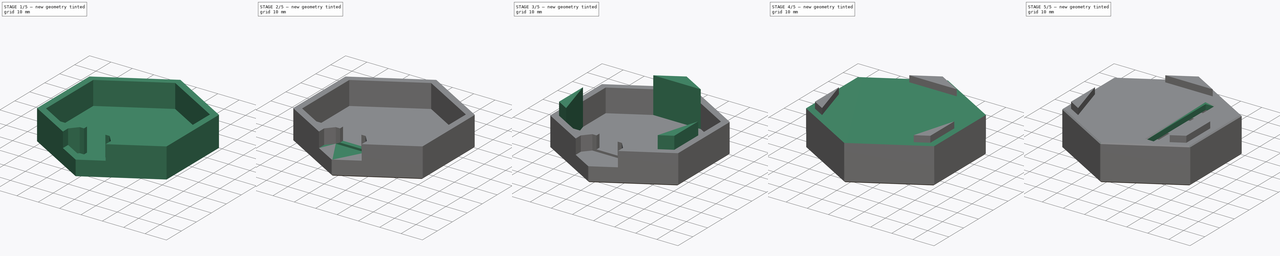
[diagram: build sequence overview — one tinted view per stage of 5, left to right]
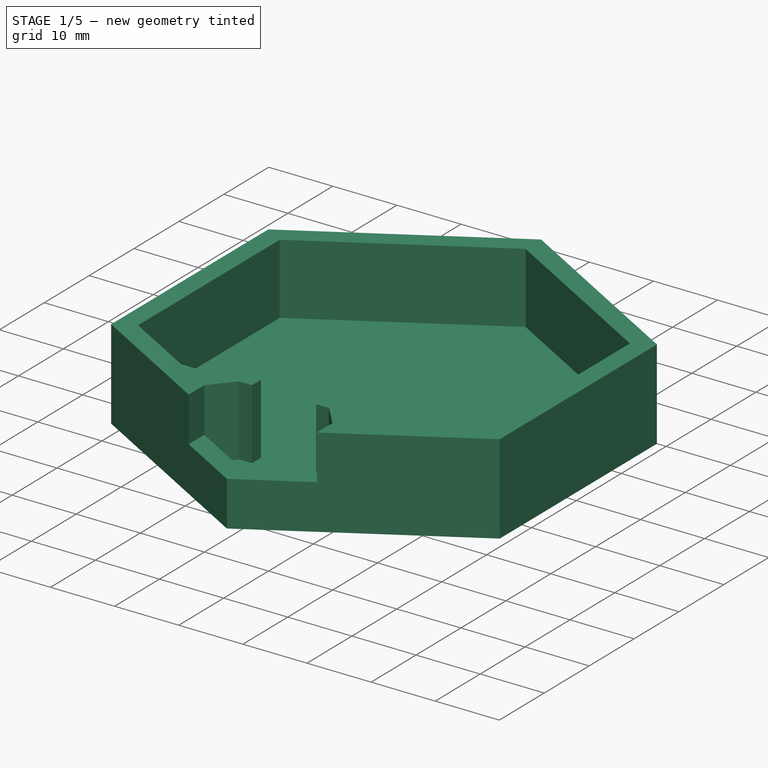
[diagram: stage 1 of 5 — iso view after this stage's code; geometry added in this stage tinted green]
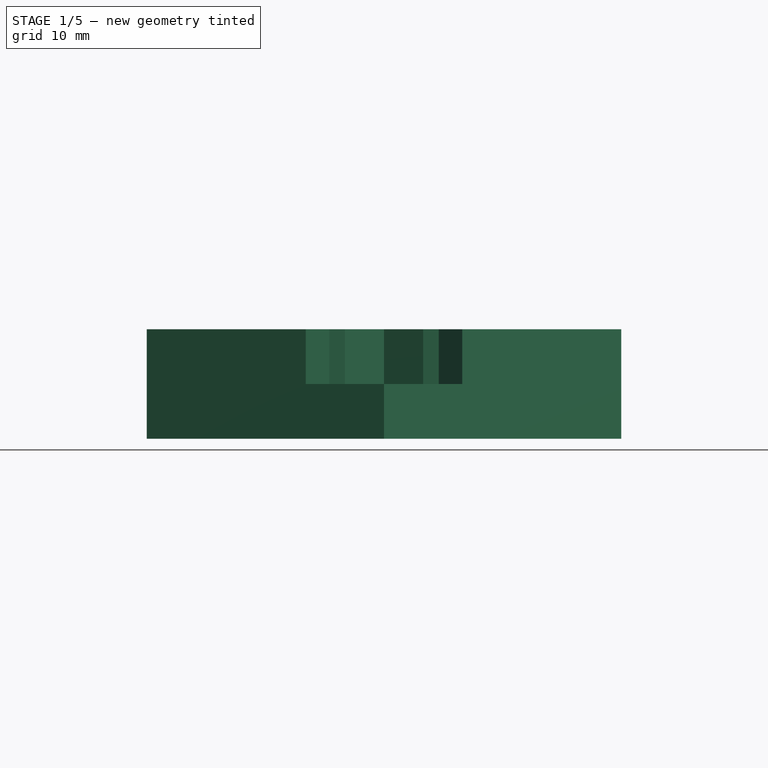
[diagram: stage 1 of 5 — front view after this stage's code; geometry added in this stage tinted green]
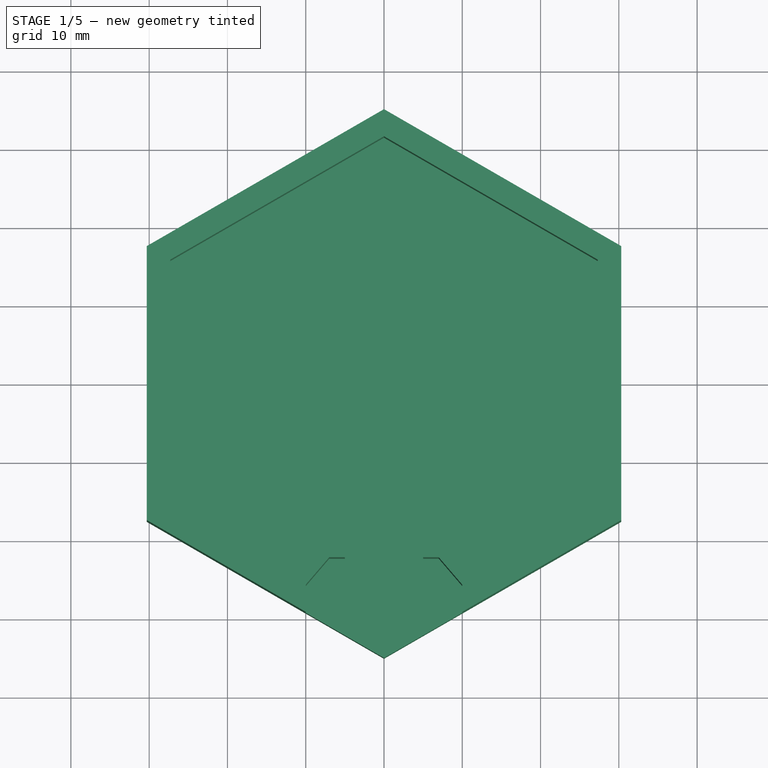
[diagram: stage 1 of 5 — top view after this stage's code; geometry added in this stage tinted green]
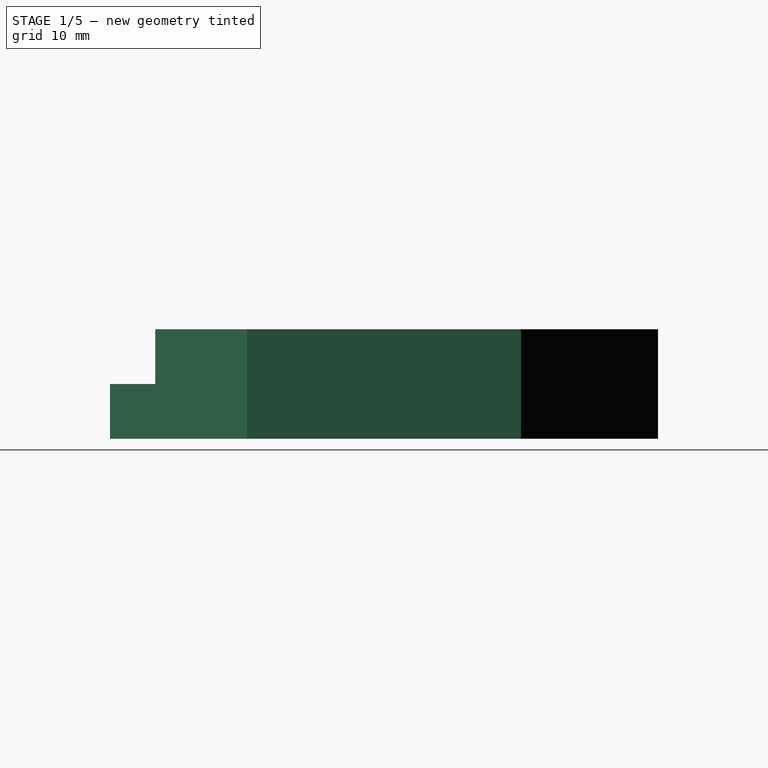
[diagram: stage 1 of 5 — right view after this stage's code; geometry added in this stage tinted green]
FCSTD DOCUMENT  (FreeCAD 1.0R39109 (Git))
Label: ILCbox
License: All rights reserved
objects: Part::Feature×24, App::Part×24, Sketcher::SketchObject×13, PartDesign::Pad×13, PartDesign::Fillet×3, PartDesign::Thickness×2, PartDesign::Pocket×2, PartDesign::Chamfer×2, PartDesign::Body×2, Spreadsheet::Sheet×1
note: 118 computed .brp shape members not serialized (recipe doc carries the construction recipe); baked Part::Feature solids carry a one-line shape summary decoded from their .brp

FEATURE [Sketcher::SketchObject] Sketch
  ArcFitTolerance = 1e-06
  AttachmentSupport = -> [XY_Plane024]
  FullyConstrained = true
  MakeInternals = false
  MapMode = 5
  sketch-geometry (7):
    g0: LineSegment StartX=0 StartY=-35 StartZ=0 EndX=30.3109 EndY=-17.5 EndZ=0
    g1: LineSegment StartX=30.3109 StartY=-17.5 StartZ=0 EndX=30.3109 EndY=17.5 EndZ=0
    g2: LineSegment StartX=30.3109 StartY=17.5 StartZ=0 EndX=3.6e-15 EndY=35 EndZ=0
    g3: LineSegment StartX=3.6e-15 StartY=35 StartZ=0 EndX=-30.3109 EndY=17.5 EndZ=0
    g4: LineSegment StartX=-30.3109 StartY=17.5 StartZ=0 EndX=-30.3109 EndY=-17.5 EndZ=0
    g5: LineSegment StartX=-30.3109 StartY=-17.5 StartZ=0 EndX=0 EndY=-35 EndZ=0
    g6: Circle [constr] CenterX=0 CenterY=0 CenterZ=0 NormalX=0 NormalY=0 NormalZ=1 AngleXU=0 Radius=35
  constraints (16):
    c: Coincident(g0,g1)
    c: Coincident(g1,g2)
    c: Coincident(g2,g3)
    c: Coincident(g3,g4)
    c: Coincident(g4,g5)
    c: Coincident(g5,g0)
    c: Equal(g0, g1-g5) x5
    c: PointOnObject(g0,g6)
    c: PointOnObject(g1,g6)
    c: PointOnObject(g2,g6)
    c: PointOnObject(g3,g6)
    c: PointOnObject(g4,g6)
    c: PointOnObject(g5,g6)
    c: Coincident(g6,g-1)
    c: PointOnObject(g5,g-2)
    c: Distance(g5,g5) = 35
FEATURE [PartDesign::Pad] Pad
  Direction = (0,0,1)
  Length = 14
  Length2 = 10
  Midplane = true
  Profile = -> Sketch
  ReferenceAxis = -> Sketch [N_Axis]
  Refine = true
  Suppressed = false
  Type = 0
FEATURE [PartDesign::Thickness] Thickness
  Base = -> Pad [Face8]
  BaseFeature = -> Pad
  Intersection = false
  Join = 0
  Mode = 0
  Refine = true
  Reversed = true
  SupportTransform = false
  Suppressed = false
  Value = 3
FEATURE [Sketcher::SketchObject] Sketch001
  ArcFitTolerance = 1e-06
  AttachmentSupport = -> [XZ_Plane024]
  FullyConstrained = true
  MakeInternals = false
  MapMode = 5
  Placement = pos=(0,0,0) rot=(1,0,0;1.5708rad)
  expr: Constraints[10] = <<variablestable>>.y_usb
  sketch-geometry (5):
    g0: LineSegment StartX=-10 StartY=7 StartZ=0 EndX=-10 EndY=0 EndZ=0
    g1: LineSegment StartX=-10 StartY=0 StartZ=0 EndX=10 EndY=0 EndZ=0
    g2: LineSegment StartX=10 StartY=0 StartZ=0 EndX=10 EndY=7 EndZ=0
    g3: LineSegment StartX=10 StartY=7 StartZ=0 EndX=-10 EndY=7 EndZ=0
    g4: GeomPoint X=0 Y=7 Z=0
  constraints (13):
    c: Coincident(g0,g1)
    c: Coincident(g1,g2)
    c: Coincident(g2,g3)
    c: Coincident(g3,g0)
    c: Vertical(g0)
    c: Vertical(g2)
    c: Horizontal(g1)
    c: Horizontal(g3)
    c: DistanceX(g3,g3) = 20
    c: Distance(g1,g3) = 7
    c: Distance(g-1,g1) = 0
    c: Symmetric(g3,g3,g4)
    c: PointOnObject(g4,g-2)
FEATURE [PartDesign::Pocket] Pocket
  BaseFeature = -> Thickness
  Direction = (0,1,-2e-16)
  Length = 7
  Length2 = 5
  Profile = -> Sketch001
  ReferenceAxis = -> Sketch001 [N_Axis]
  Refine = true
  Reversed = true
  Suppressed = false
  Type = 1
FEATURE [Sketcher::SketchObject] Sketch002
  ArcFitTolerance = 1e-06
  AttachmentSupport = -> [Pocket]
  ExternalGeometry = -> [Pocket]
  FullyConstrained = true
  MakeInternals = false
  MapMode = 5
  Placement = pos=(0,0,-4) rot=(0,0,1;0rad)
  sketch-geometry (14):
    g0: LineSegment StartX=-12.5 StartY=-22.2624 StartZ=0 EndX=-7 EndY=-20.2624 EndZ=0
    g1: LineSegment StartX=-7 StartY=-20.2624 StartZ=0 EndX=-5 EndY=-20.2624 EndZ=0
    g2: LineSegment StartX=-5 StartY=-20.2624 StartZ=0 EndX=-5 EndY=-22.2624 EndZ=0
    g3: LineSegment StartX=-5 StartY=-22.2624 StartZ=0 EndX=-7 EndY=-22.2624 EndZ=0
    g4: LineSegment StartX=-16.0622 StartY=-22.2624 StartZ=0 EndX=-12.5 EndY=-22.2624 EndZ=0
    g5: LineSegment StartX=-7 StartY=-22.2624 StartZ=0 EndX=-10 EndY=-25.7624 EndZ=0
    g6: LineSegment StartX=-10 StartY=-25.7624 StartZ=0 EndX=-16.0622 EndY=-22.2624 EndZ=0
    g7: LineSegment StartX=12.5 StartY=-22.2624 StartZ=0 EndX=7 EndY=-20.2624 EndZ=0
    g8: LineSegment StartX=7 StartY=-20.2624 StartZ=0 EndX=5 EndY=-20.2624 EndZ=0
    g9: LineSegment StartX=5 StartY=-20.2624 StartZ=0 EndX=5 EndY=-22.2624 EndZ=0
    g10: LineSegment StartX=5 StartY=-22.2624 StartZ=0 EndX=7 EndY=-22.2624 EndZ=0
    g11: LineSegment StartX=16.0622 StartY=-22.2624 StartZ=0 EndX=12.5 EndY=-22.2624 EndZ=0
    g12: LineSegment StartX=7 StartY=-22.2624 StartZ=0 EndX=10 EndY=-25.7624 EndZ=0
    g13: LineSegment StartX=10 StartY=-25.7624 StartZ=0 EndX=16.0622 EndY=-22.2624 EndZ=0
  constraints (39):
    c: PointOnObject(g4,g-4)
    c: Coincident(g0,g1)
    c: Horizontal(g1)
    c: Coincident(g1,g2)
    c: Vertical(g2)
    c: Coincident(g2,g3)
    c: Horizontal(g3)
    c: Coincident(g4,g0)
    c: Horizontal(g4)
    c: DistanceX(g0,g-4) = 2.5
    c: DistanceX(g0,g0) = 5.5
    c: Vertical(g3,g0)
    c: Coincident(g3,g5)
    c: Coincident(g5,g-4)
    c: Coincident(g5,g6)
    c: Coincident(g6,g4)
    c: Distance(g2,g2) = 2
    c: Distance(g5,g3) = 3.5
    c: Horizontal(g0,g3)
    c: DistanceX(g1,g1) = 2
    c: Coincident(g7,g8)
    c: Horizontal(g8)
    c: Coincident(g8,g9)
    c: Vertical(g9)
    c: Coincident(g9,g10)
    c: Horizontal(g10)
    c: Coincident(g11,g7)
    c: Horizontal(g11)
    c: Coincident(g10,g12)
    c: Coincident(g12,g13)
    c: Coincident(g13,g11)
    c: Distance(g9,g9) = 2
    c: Distance(g12,g10) = 3.5
    c: DistanceX(g3,g10) = 14
    c: DistanceX(g12,g7) = 2.5
    c: DistanceX(g8,g8) = 2
    c: DistanceX(g7,g7) = 5.5
    c: Symmetric(g4,g11,g-2)
    c: Symmetric(g12,g5,g-2)
FEATURE [PartDesign::Pad] Pad001
  BaseFeature = -> Pocket
  Direction = (0,0,1)
  Length = 18
  Length2 = 21
  Profile = -> Sketch002
  ReferenceAxis = -> Sketch002 [N_Axis]
  Refine = true
  Suppressed = false
  Type = 3
  UpToFace = -> Pocket [Face4]
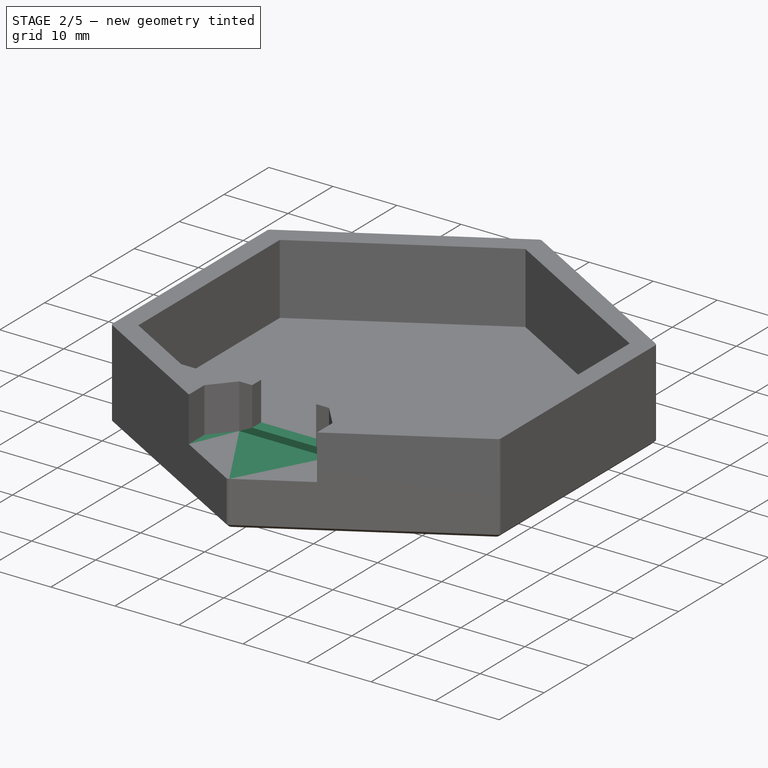
[diagram: stage 2 of 5 — iso view after this stage's code; geometry added in this stage tinted green]
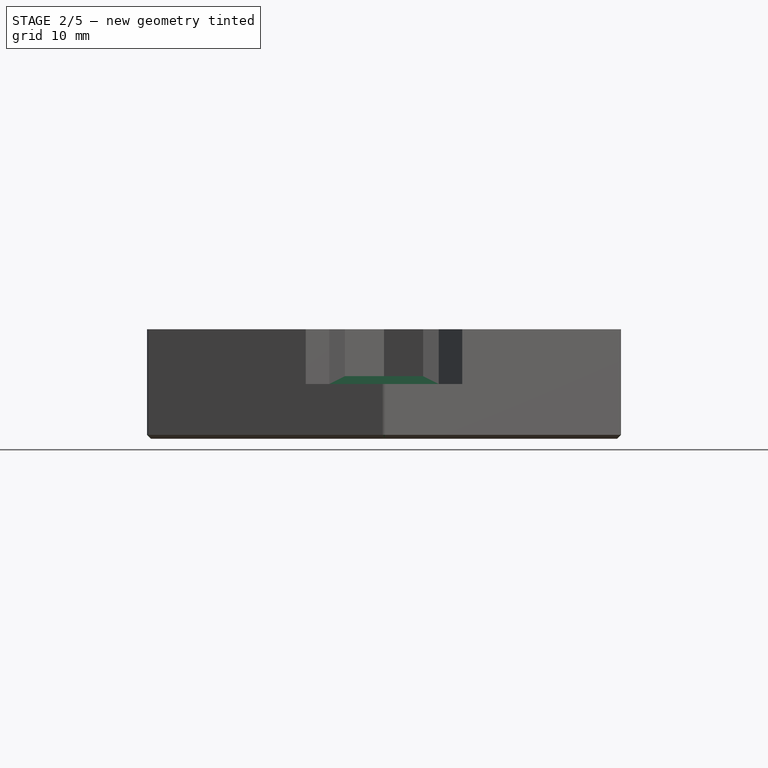
[diagram: stage 2 of 5 — front view after this stage's code; geometry added in this stage tinted green]
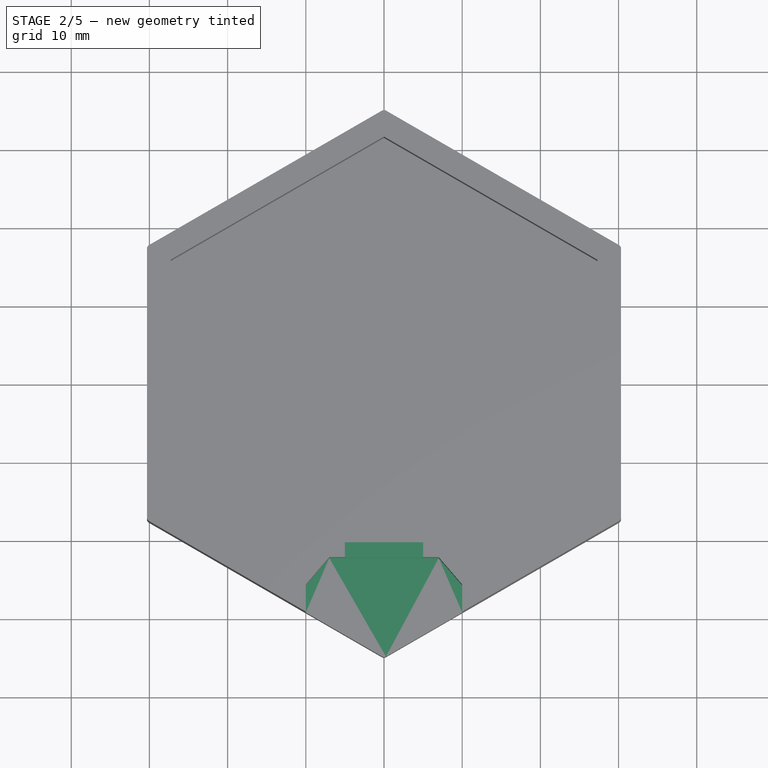
[diagram: stage 2 of 5 — top view after this stage's code; geometry added in this stage tinted green]
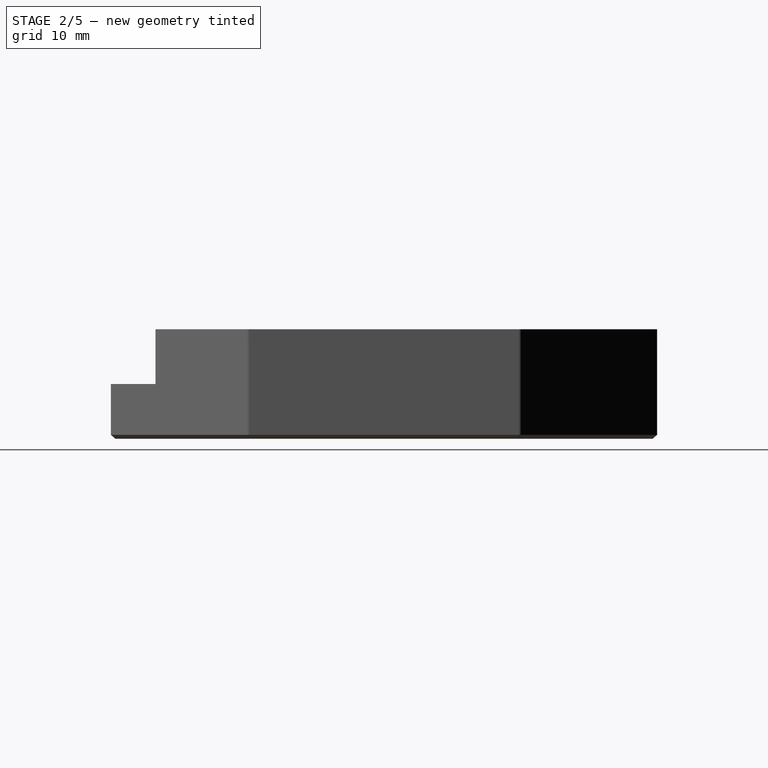
[diagram: stage 2 of 5 — right view after this stage's code; geometry added in this stage tinted green]
FEATURE [Sketcher::SketchObject] Sketch003
  ArcFitTolerance = 1e-06
  AttachmentSupport = -> [Pad001]
  ExternalGeometry = -> [Pad001]
  FullyConstrained = true
  MakeInternals = false
  MapMode = 5
  Placement = pos=(0,0,-4) rot=(0,0,1;0rad)
  sketch-geometry (5):
    g0: LineSegment StartX=-10 StartY=-25.7624 StartZ=0 EndX=-7 EndY=-22.2624 EndZ=0
    g1: LineSegment StartX=-7 StartY=-22.2624 StartZ=0 EndX=7 EndY=-22.2624 EndZ=0
    g2: LineSegment StartX=7 StartY=-22.2624 StartZ=0 EndX=10 EndY=-25.7624 EndZ=0
    g3: LineSegment StartX=10 StartY=-25.7624 StartZ=0 EndX=0 EndY=-31.5359 EndZ=0
    g4: LineSegment StartX=0 StartY=-31.5359 StartZ=0 EndX=-10 EndY=-25.7624 EndZ=0
  constraints (10):
    c: Coincident(g-5,g0)
    c: Coincident(g0,g-4)
    c: Coincident(g0,g1)
    c: Coincident(g1,g-8)
    c: Coincident(g1,g2)
    c: Coincident(g2,g-7)
    c: Coincident(g2,g3)
    c: Coincident(g3,g-6)
    c: Coincident(g3,g4)
    c: Coincident(g4,g0)
FEATURE [PartDesign::Pad] Pad002
  BaseFeature = -> Pad001
  Direction = (0,0,1)
  Length = 10
  Length2 = 10
  Profile = -> Sketch003
  ReferenceAxis = -> Sketch003 [N_Axis]
  Refine = true
  Suppressed = false
  Type = 3
  UpToFace = -> Pad001 [Face5]
FEATURE [Spreadsheet::Sheet] Spreadsheet  label="variablestable"
  cells = A2='X usb; B2(usb_port_x)=15; A3='Hauteur y usb; B3(y_usb)=0
FEATURE [Sketcher::SketchObject] Sketch007
  ArcFitTolerance = 1e-06
  AttachmentSupport = -> [Pad001]
  ExternalGeometry = -> [Pad001]
  FullyConstrained = true
  MakeInternals = false
  MapMode = 5
  Placement = pos=(0,0,-4) rot=(0,0,1;0rad)
  sketch-geometry (4):
    g0: LineSegment StartX=-5 StartY=-20.2624 StartZ=0 EndX=-5 EndY=-22.2624 EndZ=0
    g1: LineSegment StartX=-5 StartY=-22.2624 StartZ=0 EndX=5 EndY=-22.2624 EndZ=0
    g2: LineSegment StartX=5 StartY=-22.2624 StartZ=0 EndX=5 EndY=-20.2624 EndZ=0
    g3: LineSegment StartX=5 StartY=-20.2624 StartZ=0 EndX=-5 EndY=-20.2624 EndZ=0
  constraints (10):
    c: Coincident(g0,g1)
    c: Coincident(g1,g2)
    c: Coincident(g2,g3)
    c: Coincident(g3,g0)
    c: Vertical(g0)
    c: Vertical(g2)
    c: Horizontal(g1)
    c: Horizontal(g3)
    c: Coincident(g0,g-3)
    c: Coincident(g1,g-4)
FEATURE [PartDesign::Pad] Pad005
  BaseFeature = -> Pad002
  Direction = (0,0,1)
  Length = 5
  Length2 = 10
  Profile = -> Sketch007
  ReferenceAxis = -> Sketch007 [N_Axis]
  Refine = true
  Suppressed = false
  Type = 0
FEATURE [PartDesign::Chamfer] Chamfer001
  Angle = 45
  Base = -> Pad005 [Face2]
  BaseFeature = -> Pad005
  ChamferType = 0
  FlipDirection = false
  Refine = true
  Size = 0.5
  Size2 = 1
  SupportTransform = false
  Suppressed = false
  UseAllEdges = false
FEATURE [PartDesign::Fillet] Fillet001
  Base = -> Chamfer001 [Edge9,Edge50,Edge1,Edge4,Edge39,Edge57]
  BaseFeature = -> Chamfer001
  Radius = 0.5
  Refine = true
  SupportTransform = false
  Suppressed = false
  UseAllEdges = false
FEATURE [PartDesign::Fillet] Fillet002
  Base = -> Fillet001 [Edge116,Edge54,Edge117,Edge63,Edge7,Edge10]
  BaseFeature = -> Fillet001
  Radius = 0.707111
  Refine = true
  SupportTransform = false
  Suppressed = false
  UseAllEdges = false
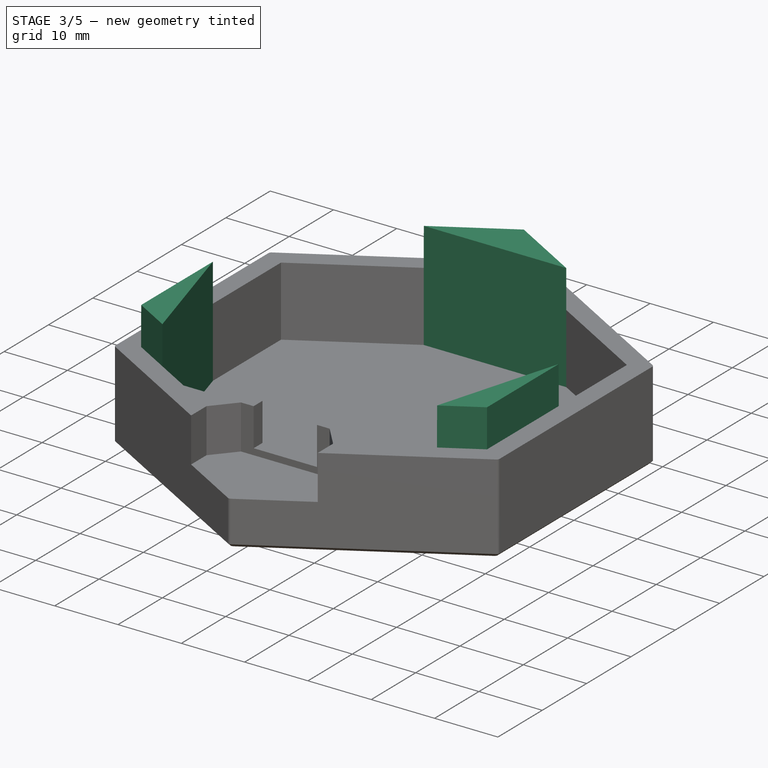
[diagram: stage 3 of 5 — iso view after this stage's code; geometry added in this stage tinted green]
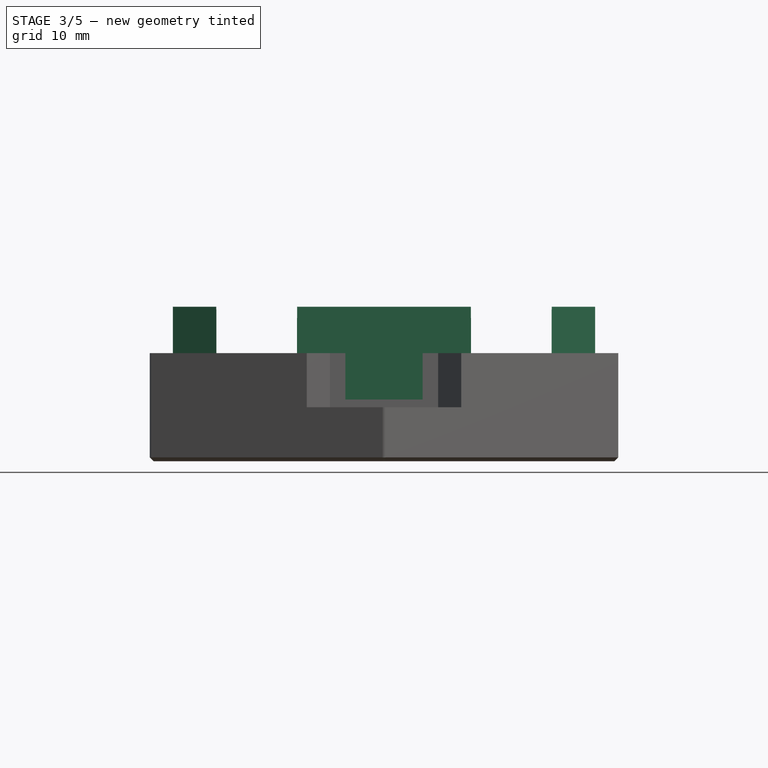
[diagram: stage 3 of 5 — front view after this stage's code; geometry added in this stage tinted green]
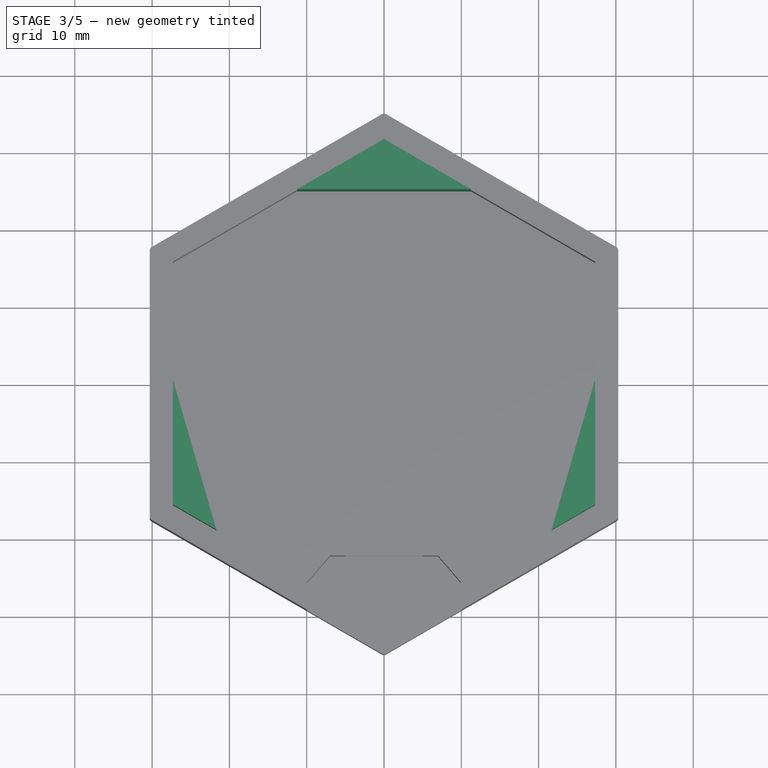
[diagram: stage 3 of 5 — top view after this stage's code; geometry added in this stage tinted green]
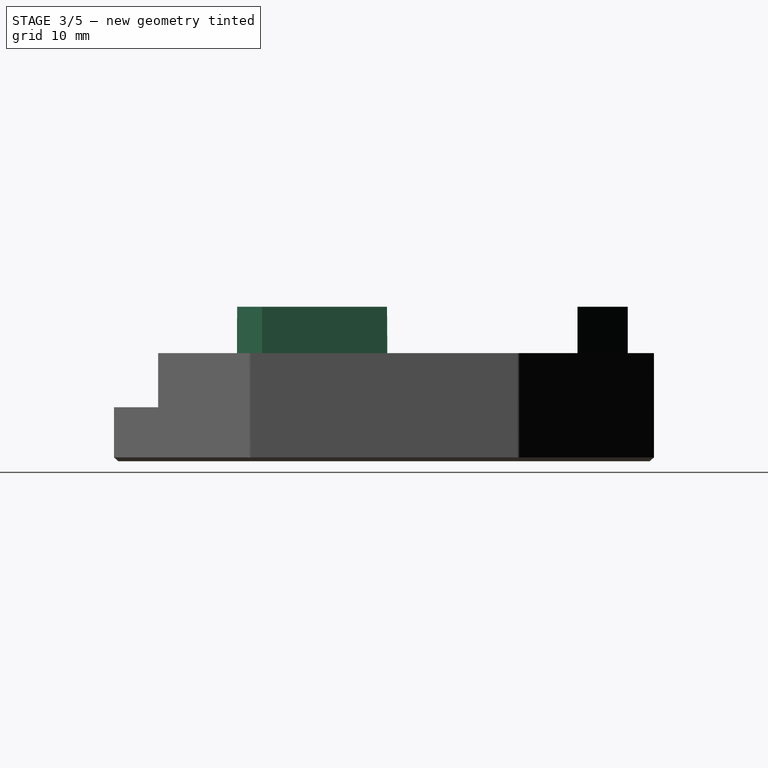
[diagram: stage 3 of 5 — right view after this stage's code; geometry added in this stage tinted green]
FEATURE [PartDesign::Body] Body001  label="Corps"
  AllowCompound = false
  Group = -> [Sketch004,Pad003,Thickness001,Sketch005,Pad004,Sketch008,Pocket001,Chamfer,Fillet,Sketch009,Pad006]
  Origin = -> Origin025
  Placement = pos=(0,1.5,7) rot=(0,0,1;0rad)
  Tip = -> Pad006
FEATURE [Sketcher::SketchObject] Sketch011
  ArcFitTolerance = 1e-06
  AttachmentSupport = -> [Fillet002]
  ExternalGeometry = -> [Fillet002]
  FullyConstrained = true
  MakeInternals = false
  MapMode = 5
  Placement = pos=(0,0,-4) rot=(0,0,1;0rad)
  sketch-geometry (3):
    g0: LineSegment StartX=-7.1e-15 StartY=31.5359 StartZ=0 EndX=-11.2583 EndY=25.0359 EndZ=0
    g1: LineSegment StartX=-11.2583 StartY=25.0359 StartZ=0 EndX=11.2583 EndY=25.0359 EndZ=0
    g2: LineSegment StartX=11.2583 StartY=25.0359 StartZ=0 EndX=-7.1e-15 EndY=31.5359 EndZ=0
  constraints (8):
    c: Coincident(g-4,g0)
    c: PointOnObject(g0,g-3)
    c: Coincident(g0,g1)
    c: PointOnObject(g1,g-4)
    c: Horizontal(g1)
    c: Coincident(g1,g2)
    c: Coincident(g2,g0)
    c: Distance(g0,g1) = 6.5
FEATURE [PartDesign::Pad] Pad007
  BaseFeature = -> Fillet002
  Direction = (0,0,1)
  Length = 11
  Length2 = 10
  Offset = -1
  Profile = -> Sketch011
  ReferenceAxis = -> Sketch011 [N_Axis]
  Refine = true
  Suppressed = false
  Type = 3
  UpToFace = -> Fillet002 [Face8]
FEATURE [PartDesign::Pad] Pad008
  BaseFeature = -> Pad007
  Direction = (0,0,1)
  Length = 5
  Length2 = 10
  Profile = -> Pad007 [Face51]
  Refine = true
  Suppressed = false
  TaperAngle = -0.05
  Type = 0
FEATURE [Sketcher::SketchObject] Sketch012
  ArcFitTolerance = 1e-06
  AttachmentSupport = -> [Pad008]
  ExternalGeometry = -> [Pad008]
  FullyConstrained = true
  MakeInternals = false
  MapMode = 5
  Placement = pos=(0,0,-4) rot=(0,0,1;0rad)
  sketch-geometry (6):
    g0: LineSegment StartX=27.3109 StartY=-15.7679 StartZ=0 EndX=27.3109 EndY=0.420038 EndZ=0
    g1: LineSegment StartX=27.3109 StartY=0.420038 StartZ=0 EndX=21.6865 EndY=-19.0152 EndZ=0
    g2: LineSegment StartX=21.6865 StartY=-19.0152 StartZ=0 EndX=27.3109 EndY=-15.7679 EndZ=0
    g3: LineSegment StartX=-27.3109 StartY=-15.7679 StartZ=0 EndX=-27.3109 EndY=0.420038 EndZ=0
    g4: LineSegment StartX=-27.3109 StartY=0.420038 StartZ=0 EndX=-21.6865 EndY=-19.0152 EndZ=0
    g5: LineSegment StartX=-21.6865 StartY=-19.0152 StartZ=0 EndX=-27.3109 EndY=-15.7679 EndZ=0
  constraints (13):
    c: Coincident(g-4,g0)
    c: PointOnObject(g0,g-4)
    c: Coincident(g0,g1)
    c: Symmetric(g-3,g-3,g1)
    c: Coincident(g1,g2)
    c: Coincident(g2,g0)
    c: Distance(g0,g1) = 4.5
    c: Symmetric(g0,g3,g-2)
    c: Symmetric(g0,g3,g-2)
    c: Symmetric(g1,g4,g-2)
    c: Symmetric(g1,g4,g-2)
    c: Symmetric(g2,g5,g-2)
    c: Symmetric(g2,g5,g-2)
FEATURE [PartDesign::Pad] Pad009
  BaseFeature = -> Pad008
  Direction = (0,0,1)
  Length = 10
  Length2 = 10
  Offset = -1
  Profile = -> Sketch012
  ReferenceAxis = -> Sketch012 [N_Axis]
  Refine = true
  Suppressed = false
  Type = 3
  UpToFace = -> Pad008 [Face8]
FEATURE [PartDesign::Pad] Pad010
  BaseFeature = -> Pad009
  Direction = (0,0,1)
  Length = 5
  Length2 = 10
  Profile = -> Pad009 [Face60,Face55]
  Refine = true
  Suppressed = false
  TaperAngle = -0.05
  Type = 0
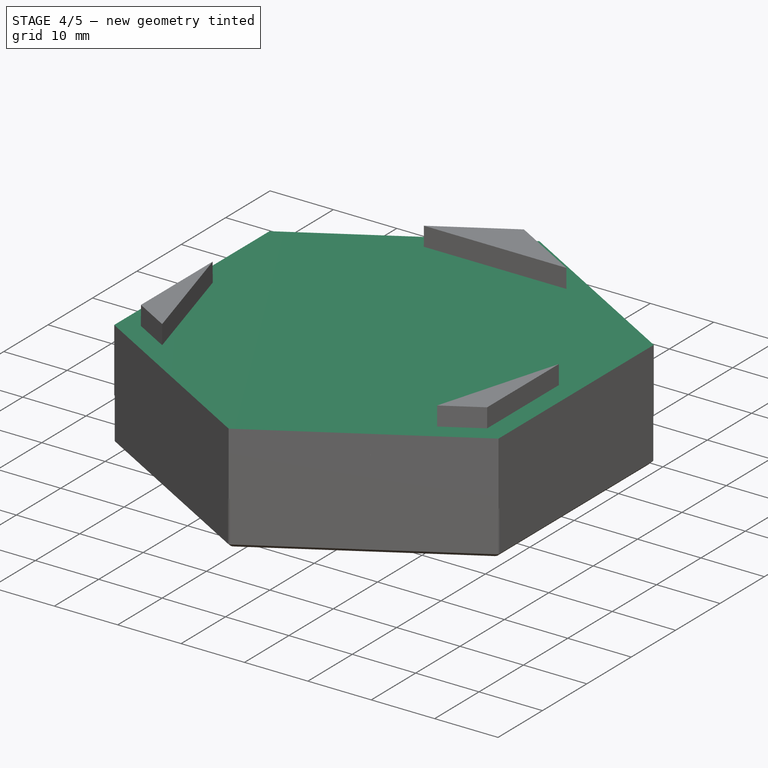
[diagram: stage 4 of 5 — iso view after this stage's code; geometry added in this stage tinted green]
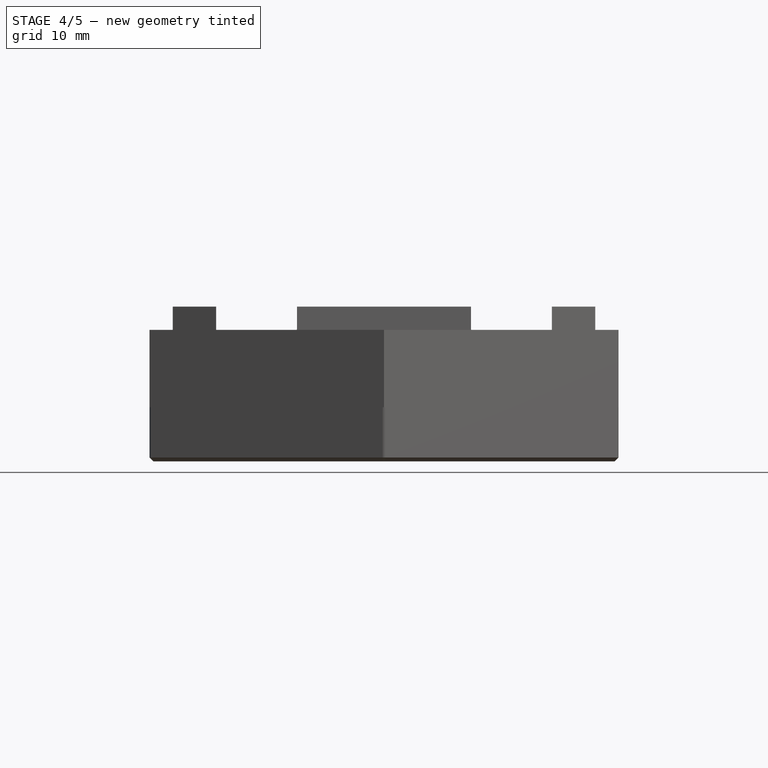
[diagram: stage 4 of 5 — front view after this stage's code; geometry added in this stage tinted green]
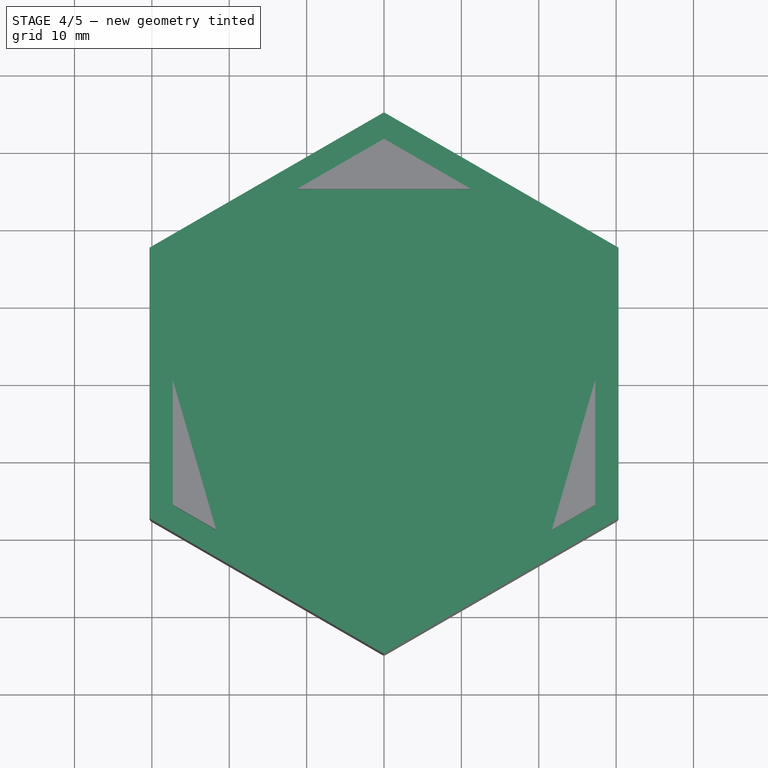
[diagram: stage 4 of 5 — top view after this stage's code; geometry added in this stage tinted green]
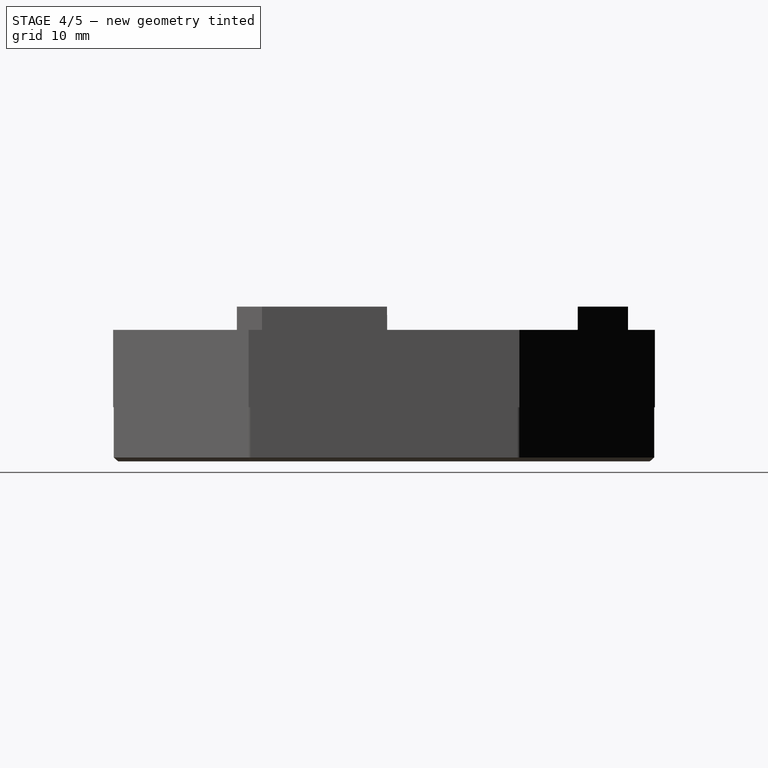
[diagram: stage 4 of 5 — right view after this stage's code; geometry added in this stage tinted green]
FEATURE [Part::Feature] Part__Feature023  label="OpenESPmodule_PCB"
  shape: bbox 33 x 39.5 x 1.6 mm, 81 faces (baked)
FEATURE [Part::Feature] Part__Feature022  label="DIP-6_W7.62mm"
  shape: bbox 7.874 x 7.05 x 6.98 mm, 114 faces (baked)
FEATURE [App::Part] DIP_6_W7_62mm  label="DIP-6_W7.62mm001"
  Group = -> [Part__Feature022]
  Origin = -> Origin022
  Placement = pos=(6.475,1.55,-0.05) rot=(0.707107,-0.707107,0;3.14159rad)
FEATURE [Part::Feature] Part__Feature021  label="C_0201_0603Metric016"
  shape: bbox 0.6 x 0.3 x 0.3 mm, 28 faces (baked)
FEATURE [App::Part] C_0201_0603Metric008  label="C_0201_0603Metric017"
  Group = -> [Part__Feature021]
  Origin = -> Origin021
  Placement = pos=(-2.5,-10.25,1.65) rot=(0,0,1;3.14159rad)
FEATURE [Part::Feature] Part__Feature020  label="SOT_23_5"
  shape: bbox 2.8 x 2.9 x 1.55 mm, 109 faces (baked)
FEATURE [App::Part] SOT_23_5  label="SOT-23-5"
  Group = -> [Part__Feature020]
  Origin = -> Origin020
  Placement = pos=(-1,-3.75,1.65) rot=(0,0,1;1.5708rad)
FEATURE [Part::Feature] Part__Feature019  label="C_0201_0603Metric014"
  shape: bbox 0.6 x 0.3 x 0.3 mm, 28 faces (baked)
FEATURE [App::Part] C_0201_0603Metric007  label="C_0201_0603Metric015"
  Group = -> [Part__Feature019]
  Origin = -> Origin019
  Placement = pos=(-3,2.595,1.65) rot=(0,0,1;1.5708rad)
FEATURE [Part::Feature] Part__Feature018  label="PinSocket_1x15_P2.54mm_Vertical"
  shape: bbox 2.54 x 38.1 x 11.6 mm, 400 faces (baked)
FEATURE [App::Part] PinSocket_1x15_P2_54mm_Vertical  label="PinSocket_1x15_P2.54mm_Vertical001"
  Group = -> [Part__Feature018]
  Origin = -> Origin018
  Placement = pos=(14.525,17.79,1.65) rot=(0,0,1;0rad)
FEATURE [Part::Feature] Part__Feature017  label="C_0201_0603Metric012"
  shape: bbox 0.6 x 0.3 x 0.3 mm, 28 faces (baked)
FEATURE [App::Part] C_0201_0603Metric006  label="C_0201_0603Metric013"
  Group = -> [Part__Feature017]
  Origin = -> Origin017
  Placement = pos=(-7.5,-8.75,1.65) rot=(0,0,-1;1.5708rad)
FEATURE [Part::Feature] Part__Feature016  label="R_0201_0603Metric008"
  shape: bbox 0.6 x 0.3 x 0.23 mm, 26 faces (baked)
FEATURE [App::Part] R_0201_0603Metric004  label="R_0201_0603Metric009"
  Group = -> [Part__Feature016]
  Origin = -> Origin016
  Placement = pos=(6,-13.75,1.65) rot=(0,0,1;3.14159rad)
FEATURE [Part::Feature] Part__Feature015  label="SW_DIP_SPSTx01_Slide_978x472mm_W762mm_P254mm001"
  shape: bbox 4.72 x 9.9 x 9.95 mm, 48 faces (baked)
FEATURE [App::Part] SW_DIP_SPSTx01_Slide_9_78x4_72mm_W7_62mm_P2_54mm001  label="SW_DIP_SPSTx01_Slide_9.78x4.72mm_W7.62mm_P2.54mm001"
  Group = -> [Part__Feature015]
  Origin = -> Origin015
  Placement = pos=(9.5,-8.4825,1.65) rot=(0,0,1;3.14159rad)
FEATURE [Part::Feature] Part__Feature014  label="SW_DIP_SPSTx01_Slide_978x472mm_W762mm_P254mm"
  shape: bbox 4.72 x 9.9 x 9.95 mm, 48 faces (baked)
FEATURE [App::Part] SW_DIP_SPSTx01_Slide_9_78x4_72mm_W7_62mm_P2_54mm  label="SW_DIP_SPSTx01_Slide_9.78x4.72mm_W7.62mm_P2.54mm"
  Group = -> [Part__Feature014]
  Origin = -> Origin014
  Placement = pos=(-13,-8.4825,1.65) rot=(0,0,1;3.14159rad)
FEATURE [Part::Feature] Part__Feature013  label="C_0201_0603Metric010"
  shape: bbox 0.6 x 0.3 x 0.3 mm, 28 faces (baked)
FEATURE [App::Part] C_0201_0603Metric005  label="C_0201_0603Metric011"
  Group = -> [Part__Feature013]
  Origin = -> Origin013
  Placement = pos=(2,-3.25,1.65) rot=(0,0,-1;1.5708rad)
FEATURE [Part::Feature] Part__Feature012  label="ESP32-C3-WROOM-02"
  shape: bbox 18 x 20 x 3.235 mm, 326 faces, 30 solids (baked)
FEATURE [App::Part] ESP32_C3_WROOM_02  label="ESP32-C3-WROOM-003"
  Group = -> [Part__Feature012]
  Origin = -> Origin012
  Placement = pos=(0.09,13.05,1.65) rot=(0,0,1;0rad)
FEATURE [Part::Feature] Part__Feature011  label="C_0201_0603Metric008"
  shape: bbox 0.6 x 0.3 x 0.3 mm, 28 faces (baked)
FEATURE [App::Part] C_0201_0603Metric004  label="C_0201_0603Metric009"
  Group = -> [Part__Feature011]
  Origin = -> Origin011
  Placement = pos=(-14.845,-4.75,1.65) rot=(0,0,1;3.14159rad)
FEATURE [Part::Feature] Part__Feature010  label="SOT_353_SC_70_5"
  shape: bbox 2 x 2 x 1.05 mm, 104 faces (baked)
FEATURE [App::Part] SOT_353_SC_70_5  label="SOT-353_SC-70-5"
  Group = -> [Part__Feature010]
  Origin = -> Origin010
  Placement = pos=(1.55,2.4,1.65) rot=(0,0,1;3.14159rad)
FEATURE [Part::Feature] Part__Feature009  label="C_0201_0603Metric006"
  shape: bbox 0.6 x 0.3 x 0.3 mm, 28 faces (baked)
FEATURE [App::Part] C_0201_0603Metric003  label="C_0201_0603Metric007"
  Group = -> [Part__Feature009]
  Origin = -> Origin009
  Placement = pos=(-14.845,2.25,1.65) rot=(0,0,1;3.14159rad)
FEATURE [Part::Feature] Part__Feature008  label="R_0201_0603Metric006"
  shape: bbox 0.6 x 0.3 x 0.23 mm, 26 faces (baked)
FEATURE [App::Part] R_0201_0603Metric003  label="R_0201_0603Metric007"
  Group = -> [Part__Feature008]
  Origin = -> Origin008
  Placement = pos=(-12,15.25,1.65) rot=(0,0,1;3.14159rad)
FEATURE [Part::Feature] Part__Feature007  label="C_0201_0603Metric004"
  shape: bbox 0.6 x 0.3 x 0.3 mm, 28 faces (baked)
FEATURE [App::Part] C_0201_0603Metric002  label="C_0201_0603Metric005"
  Group = -> [Part__Feature007]
  Origin = -> Origin007
  Placement = pos=(-13.5,8.25,1.65) rot=(0,0,1;3.14159rad)
FEATURE [Part::Feature] Part__Feature006  label="Anode_fd_sp"
  shape: bbox 6.35 x 6.35 x 14.73 mm, 40 faces (baked)
FEATURE [App::Part] LED_VCCLite_5381H5_6_35x6_35mm  label="LED_VCCLite_5381H5_6.35x6.35mm"
  Group = -> [Part__Feature006]
  Origin = -> Origin006
  Placement = pos=(-6.5,-1.06436,1.65) rot=(0,0,-1;1.5708rad)
FEATURE [Part::Feature] Part__Feature005  label="C_0201_0603Metric002"
  shape: bbox 0.6 x 0.3 x 0.3 mm, 28 faces (baked)
FEATURE [App::Part] C_0201_0603Metric001  label="C_0201_0603Metric003"
  Group = -> [Part__Feature005]
  Origin = -> Origin005
  Placement = pos=(-14.845,5.75,1.65) rot=(0,0,1;3.14159rad)
FEATURE [Part::Feature] Part__Feature004  label="USB_C_Receptacle_GCT_USB4085"
  shape: bbox 8.94 x 9.17 x 5.56 mm, 515 faces, 34 solids (baked)
FEATURE [App::Part] USB_C_Receptacle_GCT_USB4085  label="USB_C_Receptacle_GCT_USB4086"
  Group = -> [Part__Feature004]
  Origin = -> Origin004
  Placement = pos=(-2.975,-12.225,1.65) rot=(0,0,1;0rad)
FEATURE [Part::Feature] Part__Feature003  label="R_0201_0603Metric004"
  shape: bbox 0.6 x 0.3 x 0.23 mm, 26 faces (baked)
FEATURE [App::Part] R_0201_0603Metric002  label="R_0201_0603Metric005"
  Group = -> [Part__Feature003]
  Origin = -> Origin003
  Placement = pos=(-6.5,2.25,1.65) rot=(0,0,1;1.5708rad)
FEATURE [Part::Feature] Part__Feature002  label="R_0201_0603Metric002"
  shape: bbox 0.6 x 0.3 x 0.23 mm, 26 faces (baked)
FEATURE [App::Part] R_0201_0603Metric001  label="R_0201_0603Metric003"
  Group = -> [Part__Feature002]
  Origin = -> Origin002
  Placement = pos=(-2.655,-0.25,1.65) rot=(0,0,1;3.14159rad)
FEATURE [Part::Feature] Part__Feature001  label="C_0201_0603Metric"
  shape: bbox 0.6 x 0.3 x 0.3 mm, 28 faces (baked)
FEATURE [App::Part] C_0201_0603Metric  label="C_0201_0603Metric001"
  Group = -> [Part__Feature001]
  Origin = -> Origin001
  Placement = pos=(-14.845,-1.25,1.65) rot=(0,0,1;3.14159rad)
FEATURE [Part::Feature] Part__Feature  label="R_0201_0603Metric"
  shape: bbox 0.6 x 0.3 x 0.23 mm, 26 faces (baked)
FEATURE [App::Part] R_0201_0603Metric  label="R_0201_0603Metric001"
  Group = -> [Part__Feature]
  Origin = -> Origin
  Placement = pos=(-1,-10.25,1.65) rot=(0,0,-1;1.5708rad)
FEATURE [App::Part] OpenESPmodule_1  label="OpenESPmodule 1"
  Group = -> [R_0201_0603Metric,C_0201_0603Metric,R_0201_0603Metric001,R_0201_0603Metric002,USB_C_Receptacle_GCT_USB4085,C_0201_0603Metric001,LED_VCCLite_5381H5_6_35x6_35mm,C_0201_0603Metric002,R_0201_0603Metric003,C_0201_0603Metric003,SOT_353_SC_70_5,C_0201_0603Metric004,ESP32_C3_WROOM_02,C_0201_0603Metric005,SW_DIP_SPSTx01_Slide_9_78x4_72mm_W7_62mm_P2_54mm,SW_DIP_SPSTx01_Slide_9_78x4_72mm_W7_62mm_P2_54mm001,+8 more]
  Origin = -> Origin023
FEATURE [Sketcher::SketchObject] Sketch004
  ArcFitTolerance = 1e-06
  AttachmentSupport = -> [XY_Plane025]
  FullyConstrained = true
  MakeInternals = false
  MapMode = 5
  sketch-geometry (7):
    g0: LineSegment StartX=0 StartY=-35 StartZ=0 EndX=30.3109 EndY=-17.5 EndZ=0
    g1: LineSegment StartX=30.3109 StartY=-17.5 StartZ=0 EndX=30.3109 EndY=17.5 EndZ=0
    g2: LineSegment StartX=30.3109 StartY=17.5 StartZ=0 EndX=-1.5099e-12 EndY=35 EndZ=0
    g3: LineSegment StartX=-1.5099e-12 StartY=35 StartZ=0 EndX=-30.3109 EndY=17.5 EndZ=0
    g4: LineSegment StartX=-30.3109 StartY=17.5 StartZ=0 EndX=-30.3109 EndY=-17.5 EndZ=0
    g5: LineSegment StartX=-30.3109 StartY=-17.5 StartZ=0 EndX=0 EndY=-35 EndZ=0
    g6: Circle [constr] CenterX=0 CenterY=0 CenterZ=0 NormalX=0 NormalY=0 NormalZ=1 AngleXU=0 Radius=35
  constraints (16):
    c: Coincident(g0,g1)
    c: Coincident(g1,g2)
    c: Coincident(g2,g3)
    c: Coincident(g3,g4)
    c: Coincident(g4,g5)
    c: Coincident(g5,g0)
    c: Equal(g0, g1-g5) x5
    c: PointOnObject(g0,g6)
    c: PointOnObject(g1,g6)
    c: PointOnObject(g2,g6)
    c: PointOnObject(g3,g6)
    c: PointOnObject(g4,g6)
    c: PointOnObject(g5,g6)
    c: Coincident(g6,g-1)
    c: PointOnObject(g5,g-2)
    c: Distance(g5,g5) = 35
FEATURE [PartDesign::Pad] Pad003
  Direction = (0,0,1)
  Length = 10
  Length2 = 10
  Profile = -> Sketch004
  ReferenceAxis = -> Sketch004 [N_Axis]
  Refine = true
  Suppressed = false
  Type = 0
FEATURE [PartDesign::Thickness] Thickness001
  Base = -> Pad003 [Face7]
  BaseFeature = -> Pad003
  Intersection = false
  Join = 0
  Mode = 0
  Refine = true
  Reversed = true
  SupportTransform = false
  Suppressed = false
  Value = 3
FEATURE [Sketcher::SketchObject] Sketch005
  ArcFitTolerance = 1e-06
  AttachmentSupport = -> [Thickness001]
  ExternalGeometry = -> [Thickness001]
  FullyConstrained = true
  MakeInternals = false
  MapMode = 5
  Placement = pos=(0,0,7) rot=(1,0,0;3.14159rad)
  sketch-geometry (3):
    g0: LineSegment StartX=-1.534e-13 StartY=31.5359 StartZ=0 EndX=19.9186 EndY=20.0359 EndZ=0
    g1: LineSegment StartX=19.9186 StartY=20.0359 StartZ=0 EndX=-19.9186 EndY=20.0359 EndZ=0
    g2: LineSegment StartX=-19.9186 StartY=20.0359 StartZ=0 EndX=-1.528e-13 EndY=31.5359 EndZ=0
  constraints (8):
    c: Coincident(g-4,g0)
    c: PointOnObject(g0,g-4)
    c: Coincident(g0,g1)
    c: PointOnObject(g1,g-3)
    c: Horizontal(g1)
    c: Coincident(g1,g2)
    c: Coincident(g2,g0)
    c: Distance(g0,g1) = 11.5
FEATURE [PartDesign::Pad] Pad004
  BaseFeature = -> Thickness001
  Direction = (0,0,-1)
  Length = 7
  Length2 = 10
  Profile = -> Sketch005
  ReferenceAxis = -> Sketch005 [N_Axis]
  Refine = true
  Suppressed = false
  Type = 0
FEATURE [Sketcher::SketchObject] Sketch013
  ArcFitTolerance = 1e-06
  AttachmentSupport = -> [Pad010]
  ExternalGeometry = -> [Pad010]
  FullyConstrained = true
  MakeInternals = false
  MapMode = 5
  Placement = pos=(0,0,-4) rot=(0,0,1;0rad)
  sketch-geometry (4):
    g0: LineSegment StartX=-10 StartY=25.0403 StartZ=0 EndX=-10 EndY=19.0403 EndZ=0
    g1: LineSegment StartX=-10 StartY=19.0403 StartZ=0 EndX=10 EndY=19.0403 EndZ=0
    g2: LineSegment StartX=10 StartY=19.0403 StartZ=0 EndX=10 EndY=25.0403 EndZ=0
    g3: LineSegment StartX=10 StartY=25.0403 StartZ=0 EndX=-10 EndY=25.0403 EndZ=0
  constraints (11):
    c: Coincident(g0,g1)
    c: Coincident(g1,g2)
    c: Coincident(g2,g3)
    c: Coincident(g3,g0)
    c: Vertical(g0)
    c: Vertical(g2)
    c: Horizontal(g3)
    c: PointOnObject(g0,g-3)
    c: DistanceX(g1,g1) = 20
    c: DistanceY(g0,g0) = 6
    c: Symmetric(g1,g0,g-2)
FEATURE [PartDesign::Pad] Pad011
  BaseFeature = -> Pad010
  Direction = (0,0,1)
  Length = 5.55
  Length2 = 10
  Profile = -> Sketch013
  ReferenceAxis = -> Sketch013 [N_Axis]
  Refine = true
  Suppressed = false
  Type = 0
FEATURE [Sketcher::SketchObject] Sketch014
  ArcFitTolerance = 1e-06
  AttachmentSupport = -> [Pad011]
  ExternalGeometry = -> [Pad011]
  FullyConstrained = true
  MakeInternals = false
  MapMode = 5
  Placement = pos=(0,19.0403,0) rot=(1,0,0;1.5708rad)
  sketch-geometry (4):
    g0: LineSegment StartX=-7 StartY=-4 StartZ=0 EndX=7 EndY=-4 EndZ=0
    g1: LineSegment StartX=7 StartY=-4 StartZ=0 EndX=7 EndY=0 EndZ=0
    g2: LineSegment StartX=7 StartY=0 StartZ=0 EndX=-7 EndY=0 EndZ=0
    g3: LineSegment StartX=-7 StartY=0 StartZ=0 EndX=-7 EndY=-4 EndZ=0
  constraints (11):
    c: Coincident(g0,g1)
    c: Coincident(g1,g2)
    c: Coincident(g2,g3)
    c: Coincident(g3,g0)
    c: Horizontal(g0)
    c: Vertical(g1)
    c: Vertical(g3)
    c: PointOnObject(g0,g-3)
    c: PointOnObject(g1,g-1)
    c: DistanceX(g2,g2) = 14
    c: Symmetric(g2,g1,g-2)
FEATURE [PartDesign::Pad] Pad012
  BaseFeature = -> Pad011
  Direction = (0,-1,2e-16)
  Length = 14
  Length2 = 10
  Profile = -> Sketch014
  ReferenceAxis = -> Sketch014 [N_Axis]
  Refine = true
  Suppressed = false
  Type = 0
FEATURE [PartDesign::Body] Body
  AllowCompound = false
  Group = -> [Sketch,Pad,Thickness,Sketch001,Pocket,Sketch002,Pad001,Sketch003,Pad002,Sketch007,Pad005,Chamfer001,Fillet001,Fillet002,Sketch011,Pad007,Pad008,Sketch012,Pad009,Pad010,Sketch013,Pad011,Sketch014,Pad012]
  Origin = -> Origin024
  Placement = pos=(0,1.5,0) rot=(0,0,1;0rad)
  Tip = -> Pad012
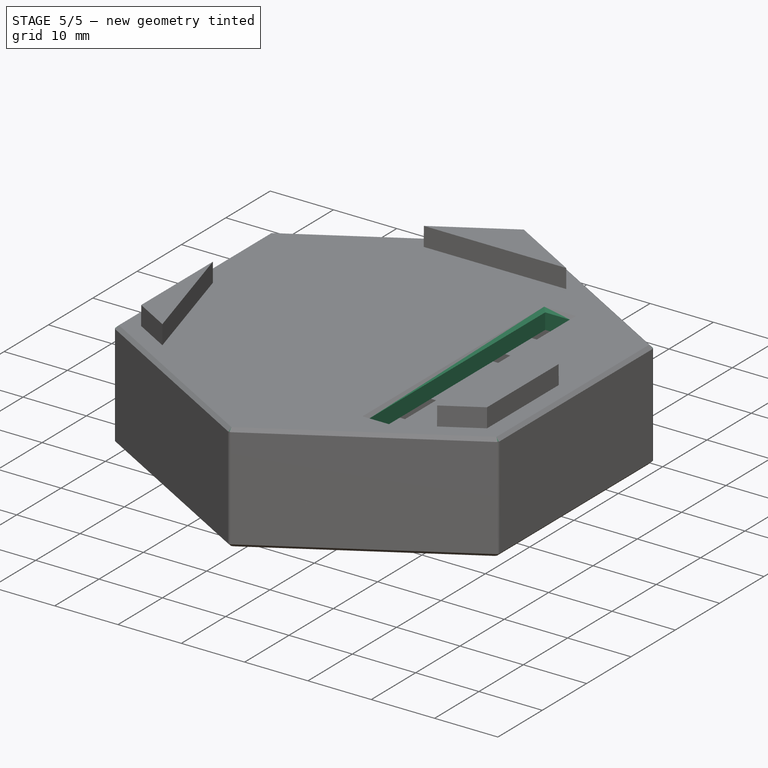
[diagram: stage 5 of 5 — iso view after this stage's code; geometry added in this stage tinted green]
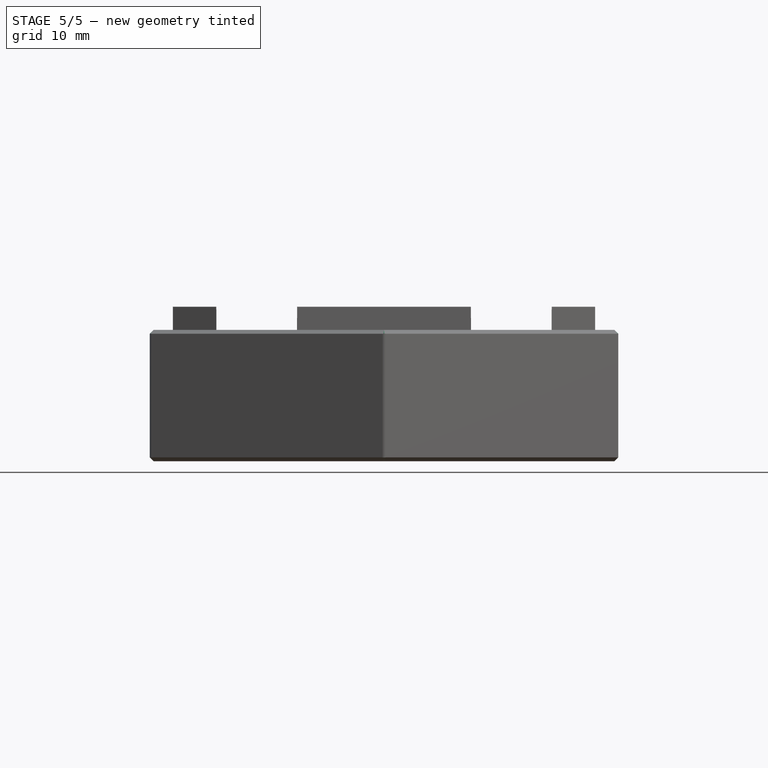
[diagram: stage 5 of 5 — front view after this stage's code; geometry added in this stage tinted green]
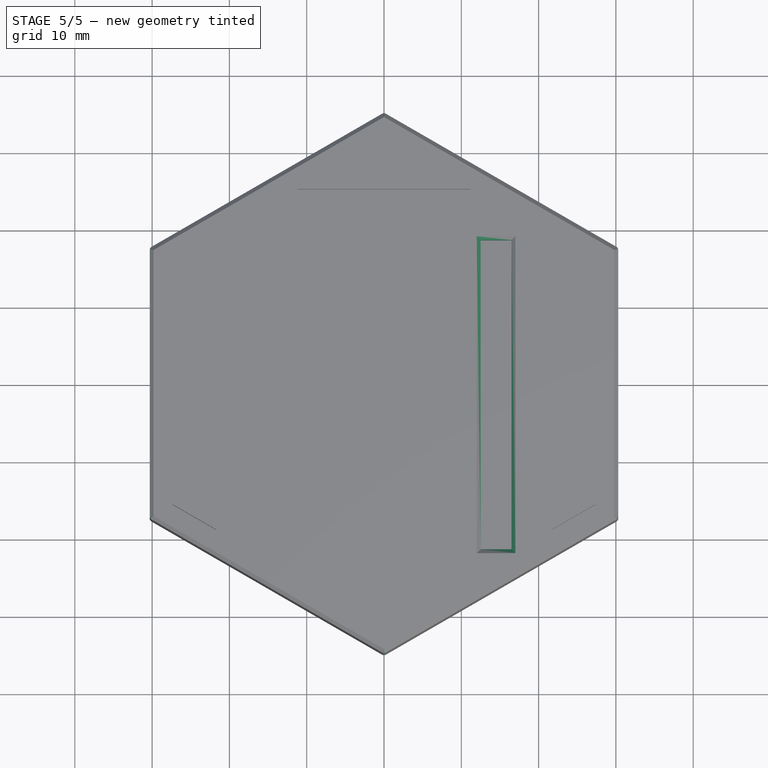
[diagram: stage 5 of 5 — top view after this stage's code; geometry added in this stage tinted green]
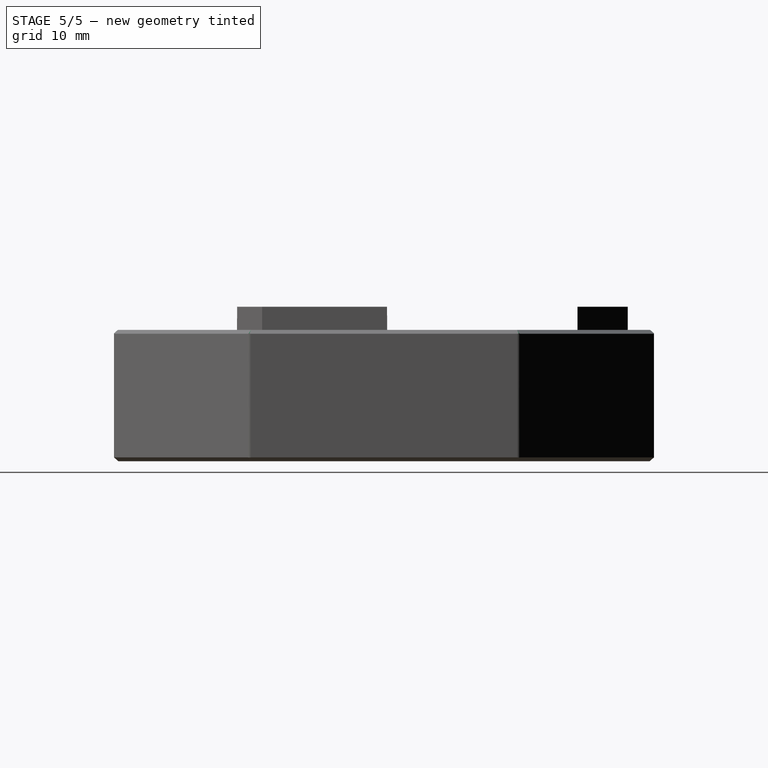
[diagram: stage 5 of 5 — right view after this stage's code; geometry added in this stage tinted green]
FEATURE [Sketcher::SketchObject] Sketch008
  ArcFitTolerance = 1e-06
  AttachmentSupport = -> [Pad004]
  FullyConstrained = true
  MakeInternals = false
  MapMode = 5
  Placement = pos=(0,0,7) rot=(1,0,0;3.14159rad)
  sketch-geometry (4):
    g0: LineSegment StartX=12.5 StartY=21.5 StartZ=0 EndX=12.5 EndY=-18.5 EndZ=0
    g1: LineSegment StartX=12.5 StartY=-18.5 StartZ=0 EndX=16.5 EndY=-18.5 EndZ=0
    g2: LineSegment StartX=16.5 StartY=-18.5 StartZ=0 EndX=16.5 EndY=21.5 EndZ=0
    g3: LineSegment StartX=16.5 StartY=21.5 StartZ=0 EndX=12.5 EndY=21.5 EndZ=0
  constraints (12):
    c: Coincident(g0,g1)
    c: Coincident(g1,g2)
    c: Coincident(g2,g3)
    c: Coincident(g3,g0)
    c: Vertical(g0)
    c: Vertical(g2)
    c: Horizontal(g1)
    c: Horizontal(g3)
    c: Distance(g2,g0) = 4
    c: DistanceY(g0,g0) = 40
    c: Distance(g0,g-2) = 12.5
    c: Distance(g-1,g1) = 18.5
FEATURE [PartDesign::Pocket] Pocket001
  BaseFeature = -> Pad004
  Direction = (0,0,1)
  Length = 100
  Length2 = 100
  Profile = -> Sketch008
  ReferenceAxis = -> Sketch008 [N_Axis]
  Refine = true
  Suppressed = false
  Type = 4
FEATURE [PartDesign::Chamfer] Chamfer
  Angle = 45
  Base = -> Pocket001 [Face5]
  BaseFeature = -> Pocket001
  ChamferType = 0
  FlipDirection = false
  Refine = true
  Size = 0.5
  Size2 = 1
  SupportTransform = false
  Suppressed = false
  UseAllEdges = false
FEATURE [PartDesign::Fillet] Fillet
  Base = -> Chamfer [Edge27,Edge4,Edge1,Edge5,Edge28,Edge42]
  BaseFeature = -> Chamfer
  Radius = 0.5
  Refine = true
  SupportTransform = false
  Suppressed = false
  UseAllEdges = false
FEATURE [Sketcher::SketchObject] Sketch009
  ArcFitTolerance = 1e-06
  AttachmentSupport = -> [Fillet]
  ExternalGeometry = -> [Fillet]
  FullyConstrained = true
  MakeInternals = false
  MapMode = 5
  Placement = pos=(0,0,0) rot=(1,0,0;3.14159rad)
  sketch-geometry (4):
    g0: LineSegment StartX=-4.75 StartY=22.2359 StartZ=0 EndX=-4.75 EndY=20.2359 EndZ=0
    g1: LineSegment StartX=-4.75 StartY=20.2359 StartZ=0 EndX=4.75 EndY=20.2359 EndZ=0
    g2: LineSegment StartX=4.75 StartY=20.2359 StartZ=0 EndX=4.75 EndY=22.2359 EndZ=0
    g3: LineSegment StartX=4.75 StartY=22.2359 StartZ=0 EndX=-4.75 EndY=22.2359 EndZ=0
  constraints (11):
    c: Coincident(g0,g1)
    c: Coincident(g1,g2)
    c: Coincident(g2,g3)
    c: Coincident(g3,g0)
    c: Vertical(g0)
    c: Vertical(g2)
    c: Horizontal(g1)
    c: Distance(g1,g-3) = 0.2
    c: Distance(g1,g3) = 2
    c: DistanceX(g3,g3) = 9.5
    c: Symmetric(g0,g2,g-2)
FEATURE [PartDesign::Pad] Pad006
  BaseFeature = -> Fillet
  Direction = (0,0,-1)
  Length = 1
  Length2 = 10
  Profile = -> Sketch009
  ReferenceAxis = -> Sketch009 [N_Axis]
  Refine = true
  Suppressed = false
  Type = 0
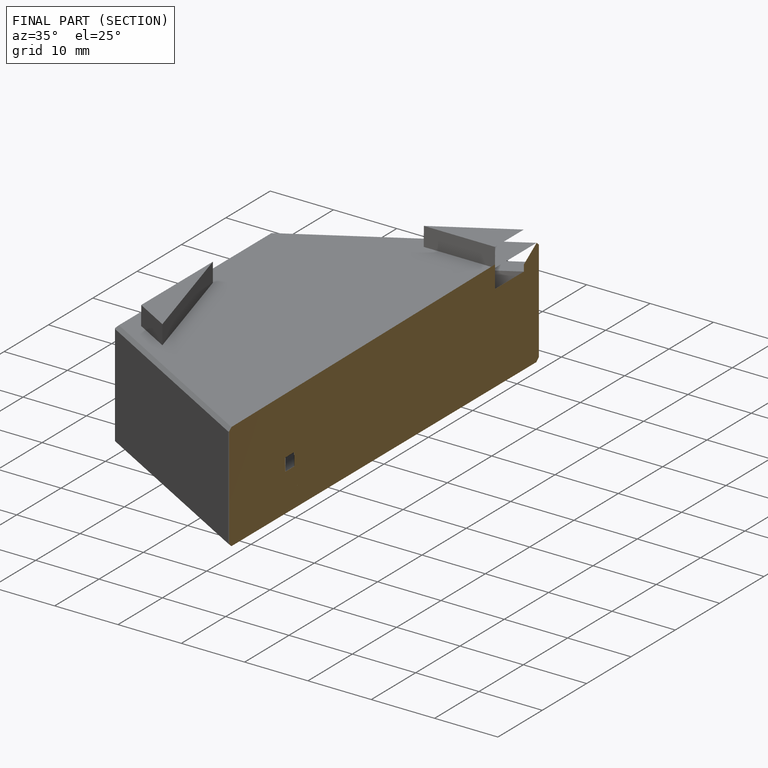
[diagram: finished part — half-section view (interior)]
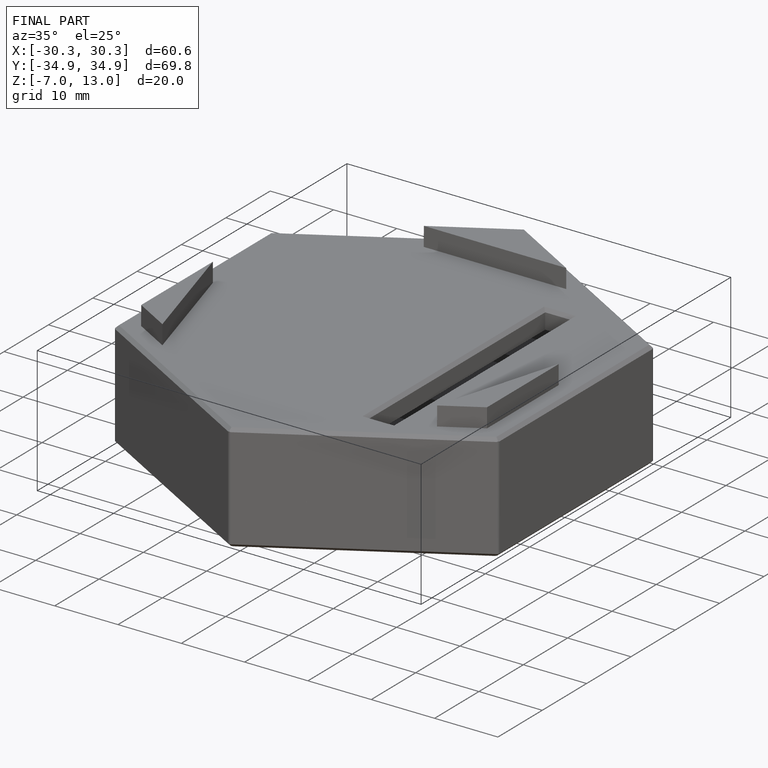
[diagram: finished part — iso view with bounding-box wireframe]
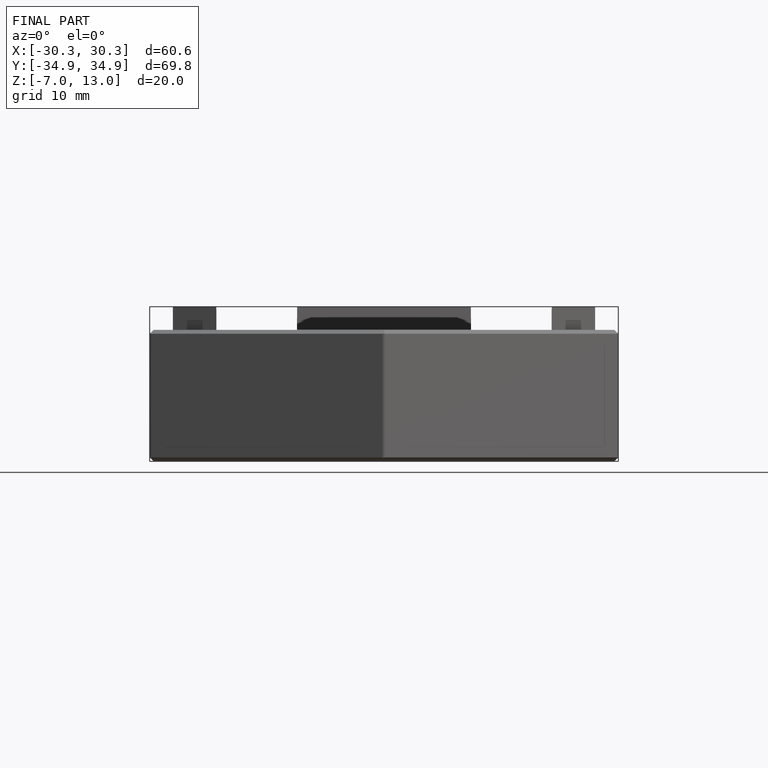
[diagram: finished part — front view with bounding-box wireframe]
